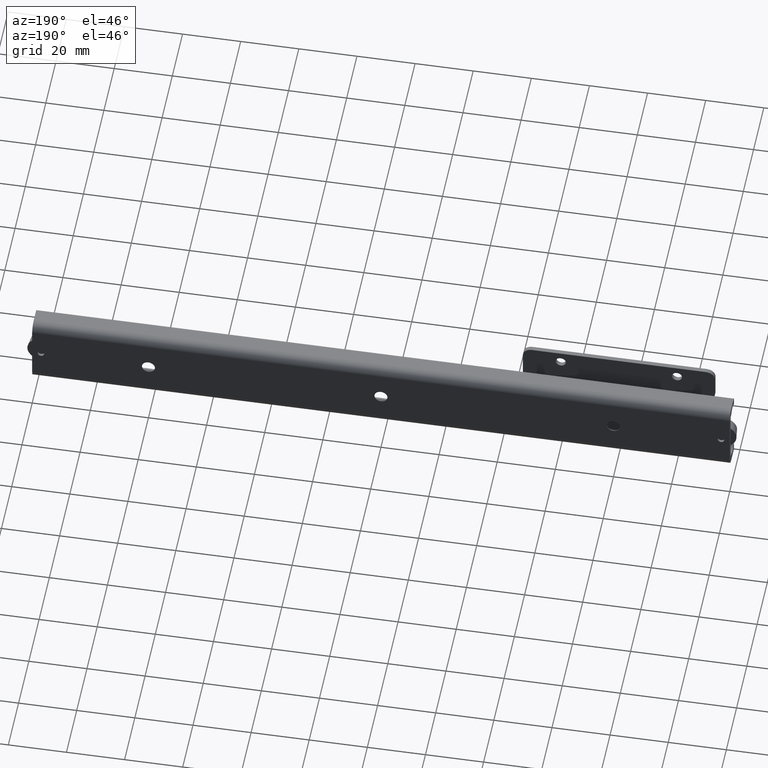
[diagram: clean part render]
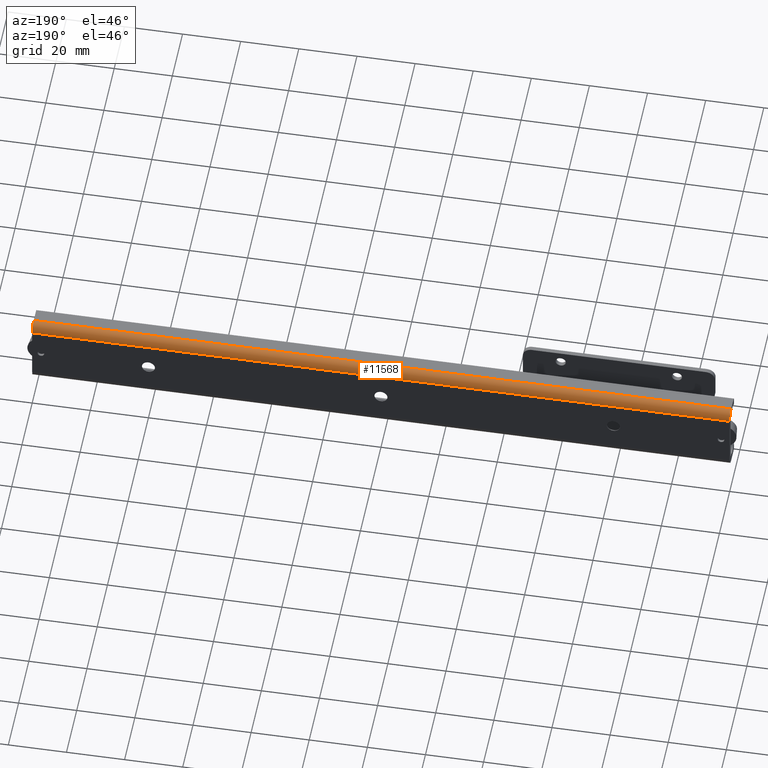
[diagram: same view with one face highlighted and labeled with its STEP entity id]
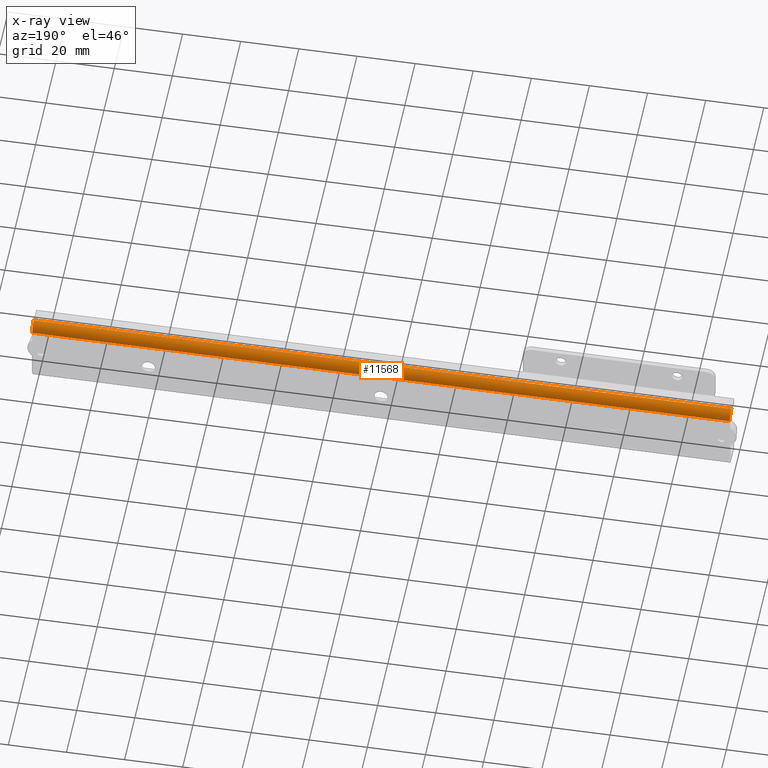
[diagram: x-ray of the same camera — body ghosted, the highlighted face saturated]
A machine part, auxiliary view. The second image highlights one B-rep face of the part: STEP entity #11568.
The next image is the same camera in x-ray: the body ghosted, the highlighted face saturated — about 0% of this face is hidden behind the body in this view.
In plain terms, the highlighted face is a freeform B-spline surface patch.
Its self-contained STEP definition (entity closure, byte-faithful):
#11295=CARTESIAN_POINT('',(0.0,-1.421085E-014,9.499999999880911));
#11296=VERTEX_POINT('',#11295);
#11302=CARTESIAN_POINT('',(240.0,-1.421085E-014,9.499999999880911));
#11303=VERTEX_POINT('',#11302);
#11304=CARTESIAN_POINT('',(240.0,-1.421085E-014,9.499999999880911));
#11305=CARTESIAN_POINT('',(0.0,-1.421085E-014,9.499999999880911));
#11306=QUASI_UNIFORM_CURVE('',1,(#11304,#11305),.UNSPECIFIED.,.F.,.U.);
#11307=EDGE_CURVE('',#11303,#11296,#11306,.T.);
#11422=CARTESIAN_POINT('',(0.0,-3.0,12.499999999880901));
#11423=VERTEX_POINT('',#11422);
#11429=CARTESIAN_POINT('',(0.0,-3.0,12.499999999880909));
#11430=CARTESIAN_POINT('',(0.0,0.0,12.499999999880911));
#11431=CARTESIAN_POINT('',(0.0,0.0,9.499999999880911));
#11439=(BOUNDED_CURVE()B_SPLINE_CURVE(2,(#11429,#11430,#11431),.UNSPECIFIED.,.F.,.U.)CURVE()GEOMETRIC_REPRESENTATION_ITEM()QUASI_UNIFORM_CURVE()RATIONAL_B_SPLINE_CURVE((1.0,0.707106781186548,1.0))REPRESENTATION_ITEM(''));
#11440=EDGE_CURVE('',#11423,#11296,#11439,.T.);
#11453=CARTESIAN_POINT('',(240.0,-3.0,12.499999999880901));
#11454=VERTEX_POINT('',#11453);
#11455=CARTESIAN_POINT('',(240.0,-3.0,12.499999999880909));
#11456=CARTESIAN_POINT('',(240.0,0.0,12.499999999880911));
#11457=CARTESIAN_POINT('',(240.0,0.0,9.499999999880911));
#11465=(BOUNDED_CURVE()B_SPLINE_CURVE(2,(#11455,#11456,#11457),.UNSPECIFIED.,.F.,.U.)CURVE()GEOMETRIC_REPRESENTATION_ITEM()QUASI_UNIFORM_CURVE()RATIONAL_B_SPLINE_CURVE((1.0,0.707106781186548,1.0))REPRESENTATION_ITEM(''));
#11466=EDGE_CURVE('',#11454,#11303,#11465,.T.);
#11544=CARTESIAN_POINT('',(246.0,-0.001028025073329,9.421469154957288));
#11545=CARTESIAN_POINT('',(-6.150000000000006,-0.001028025073329,9.421469154957288));
#11546=CARTESIAN_POINT('',(246.000000000000060,0.084673353587972,12.694272765663268));
#11547=CARTESIAN_POINT('',(-6.150000000000005,0.084673353587972,12.694272765663268));
#11548=CARTESIAN_POINT('',(246.0,-3.183145618604568,12.494404395146510));
#11549=CARTESIAN_POINT('',(-6.150000000000006,-3.183145618604568,12.494404395146510));
#11557=(BOUNDED_SURFACE()B_SPLINE_SURFACE(1,2,((#11544,#11546,#11548),(#11545,#11547,#11549)),.UNSPECIFIED.,.F.,.F.,.U.)B_SPLINE_SURFACE_WITH_KNOTS((2,2),(3,3),(0.0,252.150000000000090),(0.0,5.280126370701998),.UNSPECIFIED.)GEOMETRIC_REPRESENTATION_ITEM()RATIONAL_B_SPLINE_SURFACE(((1.0,0.675590207615660,1.0),(1.0,0.675590207615660,1.0)))REPRESENTATION_ITEM('')SURFACE());
#11558=ORIENTED_EDGE('',*,*,#11440,.F.);
#11559=CARTESIAN_POINT('',(240.0,-3.0,12.499999999880901));
#11560=CARTESIAN_POINT('',(0.0,-3.0,12.499999999880901));
#11561=QUASI_UNIFORM_CURVE('',1,(#11559,#11560),.UNSPECIFIED.,.F.,.U.);
#11562=EDGE_CURVE('',#11454,#11423,#11561,.T.);
#11563=ORIENTED_EDGE('',*,*,#11562,.F.);
#11564=ORIENTED_EDGE('',*,*,#11466,.T.);
#11565=ORIENTED_EDGE('',*,*,#11307,.T.);
#11566=EDGE_LOOP('',(#11558,#11563,#11564,#11565));
#11567=FACE_OUTER_BOUND('',#11566,.T.);
#11568=ADVANCED_FACE('',(#11567),#11557,.T.);